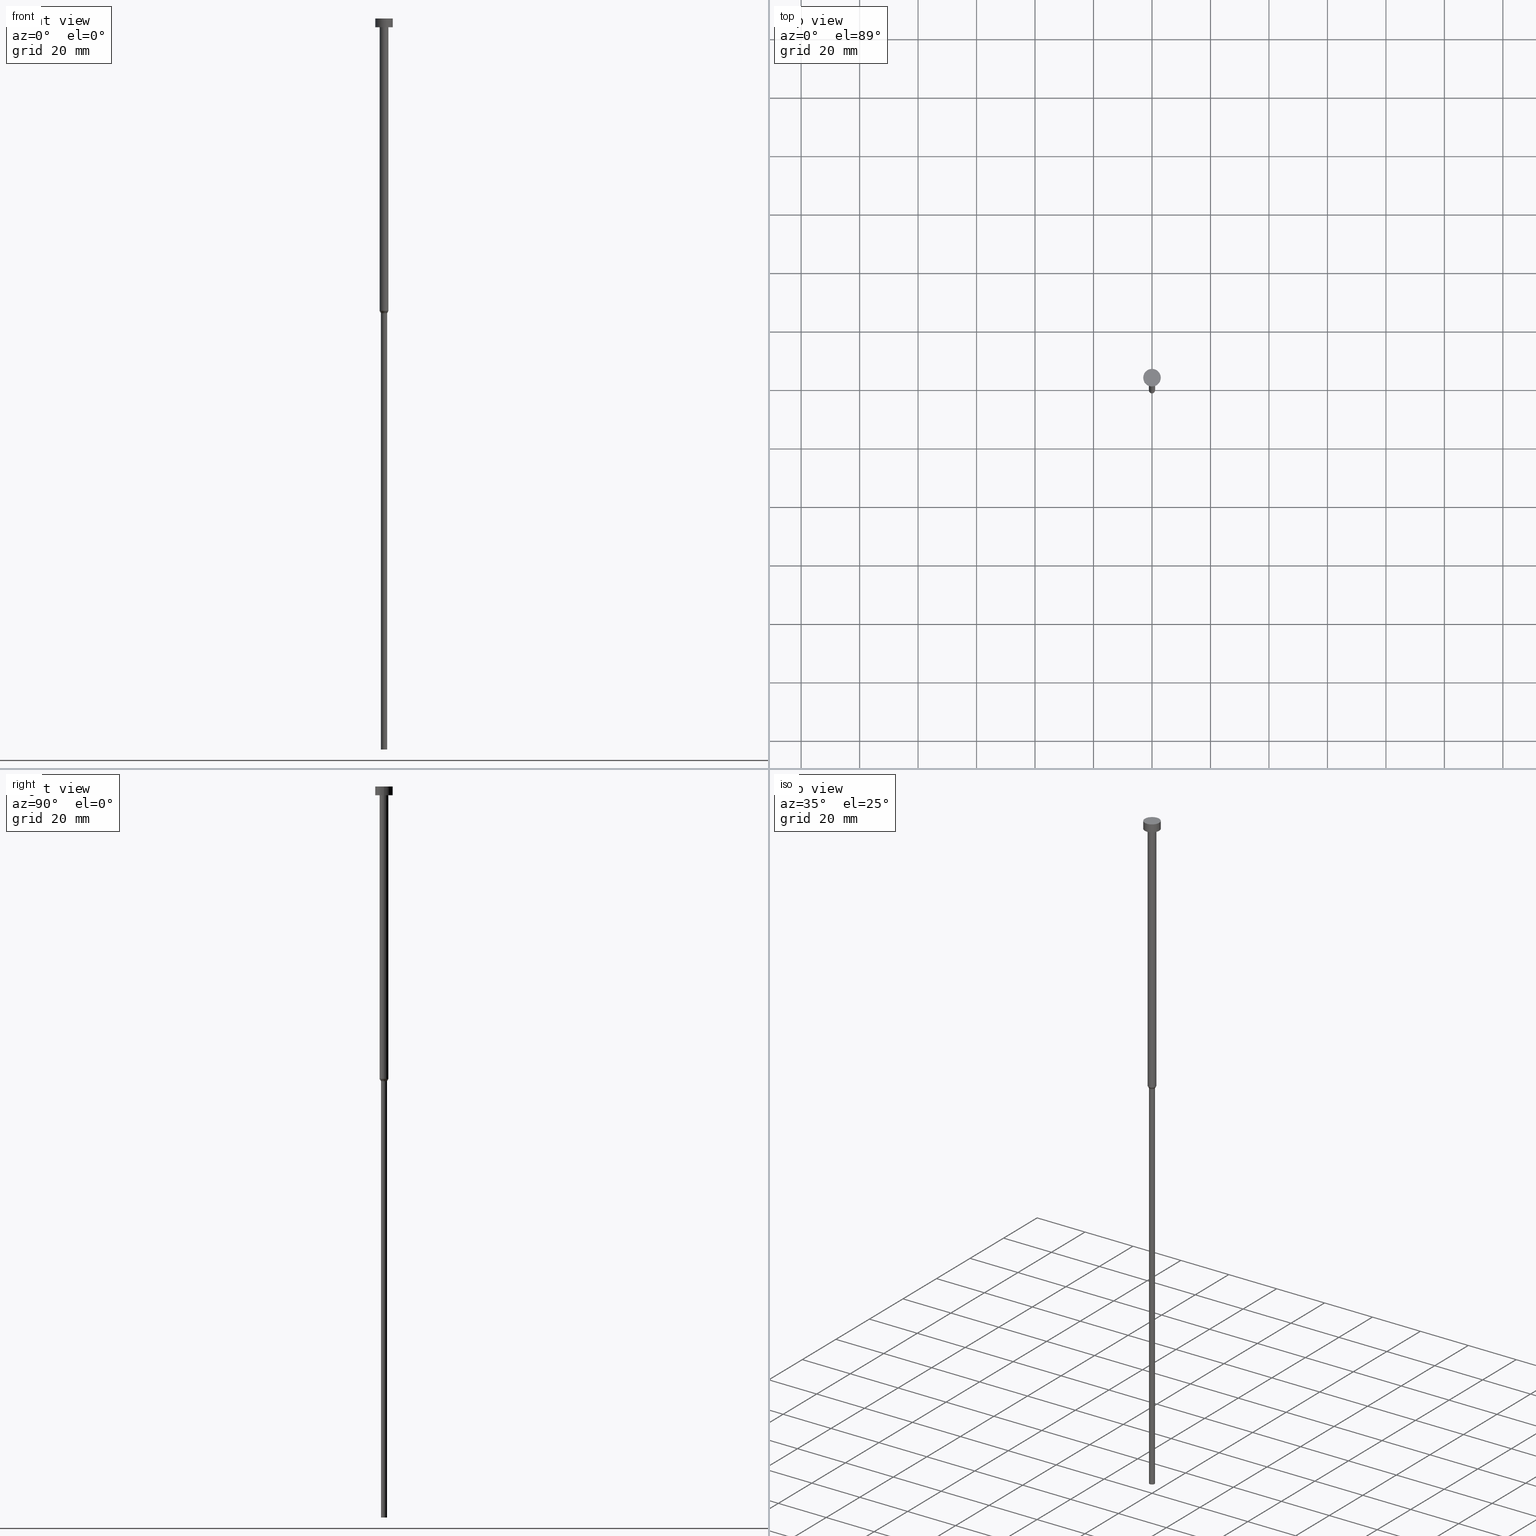
[diagram: canonical four-view strip — front | top / right | iso, engineering-drawing reading convention]
A machine part, canonical four-view strip (front | top / right | iso — engineering-drawing reading convention). The complete STEP part file that produces these views, byte-faithful:
ISO-10303-21;
HEADER;
FILE_DESCRIPTION (( 'STEP AP203' ),
    '1' );
FILE_NAME ('f9d6.STEP',
    '2023-02-13T09:01:00',
    ( '' ),
    ( '' ),
    'SwSTEP 2.0',
    'SolidWorks 2019',
    '' );
FILE_SCHEMA (( 'CONFIG_CONTROL_DESIGN' ));
ENDSEC;

DATA;
#1 = ORIENTED_EDGE ( 'NONE', *, *, #197, .F. ) ;
#2 = PRODUCT_DEFINITION_FORMATION_WITH_SPECIFIED_SOURCE ( 'LIBOVOLN�', '', #251, .NOT_KNOWN. ) ;
#3 = ORIENTED_EDGE ( 'NONE', *, *, #173, .T. ) ;
#4 = ORIENTED_EDGE ( 'NONE', *, *, #345, .T. ) ;
#5 = DESIGN_CONTEXT ( 'detailed design', #124, 'design' ) ;
#6 = EDGE_CURVE ( 'NONE', #352, #64, #143, .T. ) ;
#7 = CARTESIAN_POINT ( 'NONE',  ( 0.000000000000000000, 0.000000000000000000, -100.0000000000000000 ) ) ;
#8 = DIRECTION ( 'NONE',  ( -0.000000000000000000, -0.000000000000000000, 1.000000000000000000 ) ) ;
#9 = DIRECTION ( 'NONE',  ( 1.000000000000000000, 0.000000000000000000, 0.000000000000000000 ) ) ;
#10 = CC_DESIGN_PERSON_AND_ORGANIZATION_ASSIGNMENT ( #351, #139, ( #2 ) ) ;
#11 = CARTESIAN_POINT ( 'NONE',  ( -1.500000000000000000, 1.836970198721029934E-16, -100.0000000000000000 ) ) ;
#12 = DIRECTION ( 'NONE',  ( -0.000000000000000000, -0.000000000000000000, 1.000000000000000000 ) ) ;
#13 = PLANE ( 'NONE',  #20 ) ;
#14 = VERTEX_POINT ( 'NONE', #302 ) ;
#15 = CC_DESIGN_DATE_AND_TIME_ASSIGNMENT ( #350, #164, ( #29 ) ) ;
#16 = CARTESIAN_POINT ( 'NONE',  ( 3.000000000000000000, 0.000000000000000000, -3.000000000000000888 ) ) ;
#17 = VERTEX_POINT ( 'NONE', #215 ) ;
#18 = VECTOR ( 'NONE', #232, 1000.000000000000000 ) ;
#19 = DIRECTION ( 'NONE',  ( 1.000000000000000000, 0.000000000000000000, 0.000000000000000000 ) ) ;
#20 = AXIS2_PLACEMENT_3D ( 'NONE', #157, #45, #238 ) ;
#21 = CARTESIAN_POINT ( 'NONE',  ( 0.000000000000000000, 0.000000000000000000, -250.0000000000000000 ) ) ;
#22 = PERSON ( 'NEUR�EN�', 'NEUR�EN�', 'NEUR�EN�', ('NEUR�EN�'), ('NEUR�EN�'), ('NEUR�EN�') ) ;
#23 = CYLINDRICAL_SURFACE ( 'NONE', #255, 1.500000000000000000 ) ;
#24 = APPROVAL ( #329, 'NEUR�EN�' ) ;
#25 = PERSON_AND_ORGANIZATION ( #22, #155 ) ;
#26 = ORIENTED_EDGE ( 'NONE', *, *, #166, .F. ) ;
#27 = DATE_AND_TIME ( #142, #249 ) ;
#28 = ORIENTED_EDGE ( 'NONE', *, *, #71, .T. ) ;
#29 = PRODUCT_DEFINITION ( 'NEZN�M�', '', #2, #5 ) ;
#30 = COORDINATED_UNIVERSAL_TIME_OFFSET ( 1, 0, .AHEAD. ) ;
#31 = PERSON_AND_ORGANIZATION_ROLE ( 'design_owner' ) ;
#32 = EDGE_LOOP ( 'NONE', ( #4, #195, #333, #1 ) ) ;
#33 = UNCERTAINTY_MEASURE_WITH_UNIT (LENGTH_MEASURE( 1.000000000000000082E-05 ), #129, 'distance_accuracy_value', 'NONE');
#34 = CC_DESIGN_APPROVAL ( #285, ( #58 ) ) ;
#35 = DATE_AND_TIME ( #53, #347 ) ;
#36 = ORIENTED_EDGE ( 'NONE', *, *, #233, .T. ) ;
#37 = DIRECTION ( 'NONE',  ( 1.000000000000000000, 0.000000000000000000, 0.000000000000000000 ) ) ;
#38 = CARTESIAN_POINT ( 'NONE',  ( -1.050000000000000044, 1.285879139104720978E-16, -100.7794228634059976 ) ) ;
#39 = AXIS2_PLACEMENT_3D ( 'NONE', #338, #289, #342 ) ;
#40 = AXIS2_PLACEMENT_3D ( 'NONE', #349, #106, #188 ) ;
#41 = CARTESIAN_POINT ( 'NONE',  ( 0.000000000000000000, 0.000000000000000000, -100.7794228634059976 ) ) ;
#42 = DIRECTION ( 'NONE',  ( 1.000000000000000000, 0.000000000000000000, 0.000000000000000000 ) ) ;
#43 = CARTESIAN_POINT ( 'NONE',  ( -1.050000000000000044, 1.285879139104720978E-16, -250.0000000000000000 ) ) ;
#44 = CIRCLE ( 'NONE', #288, 1.050000000000000044 ) ;
#45 = DIRECTION ( 'NONE',  ( 0.000000000000000000, -0.000000000000000000, 1.000000000000000000 ) ) ;
#46 = CC_DESIGN_PERSON_AND_ORGANIZATION_ASSIGNMENT ( #86, #332, ( #29 ) ) ;
#47 = FACE_OUTER_BOUND ( 'NONE', #306, .T. ) ;
#48 = CARTESIAN_POINT ( 'NONE',  ( 0.000000000000000000, 0.000000000000000000, -100.0000000000000000 ) ) ;
#49 = CARTESIAN_POINT ( 'NONE',  ( 3.000000000000000000, 0.000000000000000000, -3.673940397442059868E-16 ) ) ;
#50 = AXIS2_PLACEMENT_3D ( 'NONE', #48, #235, #101 ) ;
#51 = CC_DESIGN_DATE_AND_TIME_ASSIGNMENT ( #35, #269, ( #58 ) ) ;
#52 = FACE_OUTER_BOUND ( 'NONE', #127, .T. ) ;
#53 = CALENDAR_DATE ( 2023, 13, 2 ) ;
#54 = ORIENTED_EDGE ( 'NONE', *, *, #130, .T. ) ;
#55 = APPROVAL_DATE_TIME ( #167, #243 ) ;
#56 = ADVANCED_FACE ( 'NONE', ( #242 ), #151, .T. ) ;
#57 = VERTEX_POINT ( 'NONE', #175 ) ;
#58 = SECURITY_CLASSIFICATION ( '', '', #63 ) ;
#59 =( NAMED_UNIT ( * ) SI_UNIT ( $, .STERADIAN. ) SOLID_ANGLE_UNIT ( ) );
#60 = ORIENTED_EDGE ( 'NONE', *, *, #233, .F. ) ;
#61 = COORDINATED_UNIVERSAL_TIME_OFFSET ( 1, 0, .AHEAD. ) ;
#62 = VERTEX_POINT ( 'NONE', #38 ) ;
#63 = SECURITY_CLASSIFICATION_LEVEL ( 'unclassified' ) ;
#64 = VERTEX_POINT ( 'NONE', #93 ) ;
#65 = DIRECTION ( 'NONE',  ( 1.000000000000000000, 0.000000000000000000, 0.000000000000000000 ) ) ;
#66 = CARTESIAN_POINT ( 'NONE',  ( 0.000000000000000000, 0.000000000000000000, -3.000000000000000888 ) ) ;
#67 = DIRECTION ( 'NONE',  ( -0.000000000000000000, -0.000000000000000000, 1.000000000000000000 ) ) ;
#68 = AXIS2_PLACEMENT_3D ( 'NONE', #182, #74, #211 ) ;
#69 = DIRECTION ( 'NONE',  ( 1.000000000000000000, 0.000000000000000000, 0.000000000000000000 ) ) ;
#70 = DIRECTION ( 'NONE',  ( 1.000000000000000000, 0.000000000000000000, 0.000000000000000000 ) ) ;
#71 = EDGE_CURVE ( 'NONE', #325, #278, #230, .T. ) ;
#72 = CYLINDRICAL_SURFACE ( 'NONE', #328, 1.050000000000000044 ) ;
#73 = APPROVAL_PERSON_ORGANIZATION ( #25, #285, #214 ) ;
#74 = DIRECTION ( 'NONE',  ( 0.000000000000000000, 0.000000000000000000, -1.000000000000000000 ) ) ;
#75 = DIRECTION ( 'NONE',  ( 1.000000000000000000, 0.000000000000000000, 0.000000000000000000 ) ) ;
#76 = CC_DESIGN_PERSON_AND_ORGANIZATION_ASSIGNMENT ( #241, #161, ( #2 ) ) ;
#77 = APPLICATION_CONTEXT ( 'configuration controlled 3d designs of mechanical parts and assemblies' ) ;
#78 = CIRCLE ( 'NONE', #224, 1.050000000000000044 ) ;
#80 = CIRCLE ( 'NONE', #122, 1.500000000000000000 ) ;
#79 = DIRECTION ( 'NONE',  ( 1.000000000000000000, 0.000000000000000000, 0.000000000000000000 ) ) ;
#81 = CC_DESIGN_APPROVAL ( #24, ( #29 ) ) ;
#82 = APPROVAL_STATUS ( 'not_yet_approved' ) ;
#83 = VERTEX_POINT ( 'NONE', #340 ) ;
#84 = EDGE_LOOP ( 'NONE', ( #165, #60 ) ) ;
#85 = CIRCLE ( 'NONE', #209, 3.000000000000000000 ) ;
#86 = PERSON_AND_ORGANIZATION ( #22, #155 ) ;
#87 = ORIENTED_EDGE ( 'NONE', *, *, #180, .F. ) ;
#88 =( NAMED_UNIT ( * ) PLANE_ANGLE_UNIT ( ) SI_UNIT ( $, .RADIAN. ) );
#89 = ORIENTED_EDGE ( 'NONE', *, *, #192, .F. ) ;
#90 = DIRECTION ( 'NONE',  ( -0.000000000000000000, -0.000000000000000000, 1.000000000000000000 ) ) ;
#91 = VECTOR ( 'NONE', #348, 1000.000000000000000 ) ;
#92 = LOCAL_TIME ( 10, 1, 0.000000000000000000, #275 ) ;
#93 = CARTESIAN_POINT ( 'NONE',  ( -1.500000000000000000, 1.836970198721029934E-16, -3.000000000000000888 ) ) ;
#94 = EDGE_CURVE ( 'NONE', #282, #274, #97, .T. ) ;
#95 = LINE ( 'NONE', #312, #138 ) ;
#96 = DIRECTION ( 'NONE',  ( -0.000000000000000000, -0.000000000000000000, 1.000000000000000000 ) ) ;
#97 = CIRCLE ( 'NONE', #291, 3.000000000000000000 ) ;
#98 = VECTOR ( 'NONE', #290, 1000.000000000000000 ) ;
#99 = AXIS2_PLACEMENT_3D ( 'NONE', #259, #100, #65 ) ;
#100 = DIRECTION ( 'NONE',  ( -0.000000000000000000, -0.000000000000000000, 1.000000000000000000 ) ) ;
#101 = DIRECTION ( 'NONE',  ( 1.000000000000000000, 0.000000000000000000, 0.000000000000000000 ) ) ;
#102 = CONICAL_SURFACE ( 'NONE', #279, 1.500000000000000000, 0.5235987755983028125 ) ;
#103 = CARTESIAN_POINT ( 'NONE',  ( -3.000000000000000000, 3.673940397442059868E-16, 0.000000000000000000 ) ) ;
#104 = DIRECTION ( 'NONE',  ( -0.000000000000000000, -0.000000000000000000, 1.000000000000000000 ) ) ;
#105 = ADVANCED_FACE ( 'NONE', ( #229 ), #310, .T. ) ;
#106 = DIRECTION ( 'NONE',  ( -0.000000000000000000, -0.000000000000000000, 1.000000000000000000 ) ) ;
#107 = COORDINATED_UNIVERSAL_TIME_OFFSET ( 1, 0, .AHEAD. ) ;
#108 = EDGE_CURVE ( 'NONE', #133, #62, #95, .T. ) ;
#109 = EDGE_LOOP ( 'NONE', ( #276, #116, #326, #111 ) ) ;
#110 = DATE_AND_TIME ( #244, #219 ) ;
#111 = ORIENTED_EDGE ( 'NONE', *, *, #130, .F. ) ;
#112 = PERSON_AND_ORGANIZATION ( #22, #155 ) ;
#113 = EDGE_LOOP ( 'NONE', ( #245, #137 ) ) ;
#114 = EDGE_CURVE ( 'NONE', #62, #17, #78, .T. ) ;
#115 = EDGE_LOOP ( 'NONE', ( #354, #36, #220, #318 ) ) ;
#116 = ORIENTED_EDGE ( 'NONE', *, *, #108, .T. ) ;
#117 = FACE_OUTER_BOUND ( 'NONE', #163, .T. ) ;
#118 = ADVANCED_FACE ( 'NONE', ( #256 ), #343, .T. ) ;
#119 = DIRECTION ( 'NONE',  ( -0.000000000000000000, -0.000000000000000000, 1.000000000000000000 ) ) ;
#120 = DIRECTION ( 'NONE',  ( -1.000000000000000000, 0.000000000000000000, -0.000000000000000000 ) ) ;
#121 = DIRECTION ( 'NONE',  ( -0.000000000000000000, -0.000000000000000000, 1.000000000000000000 ) ) ;
#122 = AXIS2_PLACEMENT_3D ( 'NONE', #7, #67, #337 ) ;
#123 = PLANE ( 'NONE',  #327 ) ;
#124 = APPLICATION_CONTEXT ( 'configuration controlled 3d designs of mechanical parts and assemblies' ) ;
#125 = FACE_OUTER_BOUND ( 'NONE', #263, .T. ) ;
#126 = CARTESIAN_POINT ( 'NONE',  ( 0.000000000000000000, 0.000000000000000000, -3.000000000000000888 ) ) ;
#127 = EDGE_LOOP ( 'NONE', ( #191, #271, #168, #87 ) ) ;
#128 = CARTESIAN_POINT ( 'NONE',  ( -3.000000000000000000, 3.673940397442059868E-16, -3.673940397442059868E-16 ) ) ;
#129 =( LENGTH_UNIT ( ) NAMED_UNIT ( * ) SI_UNIT ( .MILLI., .METRE. ) );
#130 = EDGE_CURVE ( 'NONE', #83, #17, #284, .T. ) ;
#131 = APPROVAL_STATUS ( 'not_yet_approved' ) ;
#132 = APPROVAL_PERSON_ORGANIZATION ( #112, #24, #248 ) ;
#133 = VERTEX_POINT ( 'NONE', #43 ) ;
#134 = APPROVAL_DATE_TIME ( #27, #24 ) ;
#135 = ORIENTED_EDGE ( 'NONE', *, *, #266, .F. ) ;
#136 = MECHANICAL_CONTEXT ( 'NONE', #77, 'mechanical' ) ;
#137 = ORIENTED_EDGE ( 'NONE', *, *, #180, .T. ) ;
#138 = VECTOR ( 'NONE', #174, 1000.000000000000000 ) ;
#139 = PERSON_AND_ORGANIZATION_ROLE ( 'design_supplier' ) ;
#140 = EDGE_LOOP ( 'NONE', ( #28, #236, #26, #135 ) ) ;
#141 = VECTOR ( 'NONE', #262, 1000.000000000000000 ) ;
#142 = CALENDAR_DATE ( 2023, 13, 2 ) ;
#143 = LINE ( 'NONE', #334, #247 ) ;
#144 = CARTESIAN_POINT ( 'NONE',  ( 1.050000000000000044, 0.000000000000000000, 0.000000000000000000 ) ) ;
#145 = ADVANCED_FACE ( 'NONE', ( #260, #199 ), #123, .T. ) ;
#146 = DIRECTION ( 'NONE',  ( 1.000000000000000000, 0.000000000000000000, 0.000000000000000000 ) ) ;
#147 = AXIS2_PLACEMENT_3D ( 'NONE', #171, #273, #216 ) ;
#148 = CARTESIAN_POINT ( 'NONE',  ( 1.500000000000000000, 0.000000000000000000, 0.000000000000000000 ) ) ;
#149 = CARTESIAN_POINT ( 'NONE',  ( 0.000000000000000000, 0.000000000000000000, -3.673940397442059868E-16 ) ) ;
#150 = EDGE_CURVE ( 'NONE', #57, #64, #254, .T. ) ;
#151 = CYLINDRICAL_SURFACE ( 'NONE', #297, 3.000000000000000000 ) ;
#152 = CARTESIAN_POINT ( 'NONE',  ( 0.000000000000000000, 0.000000000000000000, -100.0000000000000000 ) ) ;
#153 = DIRECTION ( 'NONE',  ( -0.000000000000000000, -0.000000000000000000, 1.000000000000000000 ) ) ;
#154 = DIRECTION ( 'NONE',  ( -0.000000000000000000, -0.000000000000000000, 1.000000000000000000 ) ) ;
#155 = ORGANIZATION ( 'NEUR�EN�', 'NEUR�EN�', '' ) ;
#156 = FACE_OUTER_BOUND ( 'NONE', #109, .T. ) ;
#157 = CARTESIAN_POINT ( 'NONE',  ( 0.000000000000000000, 0.000000000000000000, -1.836970198721029934E-16 ) ) ;
#158 = APPLICATION_PROTOCOL_DEFINITION ( 'international standard', 'config_control_design', 1994, #77 ) ;
#159 = EDGE_CURVE ( 'NONE', #17, #14, #226, .T. ) ;
#160 = ORIENTED_EDGE ( 'NONE', *, *, #108, .F. ) ;
#162 = AXIS2_PLACEMENT_3D ( 'NONE', #21, #104, #212 ) ;
#161 = PERSON_AND_ORGANIZATION_ROLE ( 'creator' ) ;
#163 = EDGE_LOOP ( 'NONE', ( #172, #252, #186, #89 ) ) ;
#164 = DATE_TIME_ROLE ( 'creation_date' ) ;
#165 = ORIENTED_EDGE ( 'NONE', *, *, #71, .F. ) ;
#166 = EDGE_CURVE ( 'NONE', #274, #282, #225, .T. ) ;
#167 = DATE_AND_TIME ( #308, #92 ) ;
#168 = ORIENTED_EDGE ( 'NONE', *, *, #197, .T. ) ;
#169 = MANIFOLD_SOLID_BREP ( 'Rotovat1', #202 ) ;
#170 = AXIS2_PLACEMENT_3D ( 'NONE', #227, #96, #203 ) ;
#171 = CARTESIAN_POINT ( 'NONE',  ( 0.000000000000000000, 0.000000000000000000, 0.000000000000000000 ) ) ;
#172 = ORIENTED_EDGE ( 'NONE', *, *, #173, .F. ) ;
#173 = EDGE_CURVE ( 'NONE', #62, #352, #313, .T. ) ;
#174 = DIRECTION ( 'NONE',  ( -0.000000000000000000, -0.000000000000000000, 1.000000000000000000 ) ) ;
#175 = CARTESIAN_POINT ( 'NONE',  ( 1.500000000000000000, 0.000000000000000000, -3.000000000000000888 ) ) ;
#176 = AXIS2_PLACEMENT_3D ( 'NONE', #201, #8, #42 ) ;
#177 = CARTESIAN_POINT ( 'NONE',  ( 1.500000000000000000, 0.000000000000000000, -100.0000000000000000 ) ) ;
#178 =( GEOMETRIC_REPRESENTATION_CONTEXT ( 3 ) GLOBAL_UNCERTAINTY_ASSIGNED_CONTEXT ( ( #33 ) ) GLOBAL_UNIT_ASSIGNED_CONTEXT ( ( #129, #88, #59 ) ) REPRESENTATION_CONTEXT ( 'NONE', 'WORKASPACE' ) );
#179 = DIRECTION ( 'NONE',  ( -0.000000000000000000, -0.000000000000000000, 1.000000000000000000 ) ) ;
#180 = EDGE_CURVE ( 'NONE', #64, #57, #198, .T. ) ;
#181 = CARTESIAN_POINT ( 'NONE',  ( 0.000000000000000000, 0.000000000000000000, -100.0000000000000000 ) ) ;
#182 = CARTESIAN_POINT ( 'NONE',  ( 0.000000000000000000, 0.000000000000000000, -250.0000000000000000 ) ) ;
#183 = CIRCLE ( 'NONE', #162, 1.050000000000000044 ) ;
#184 = FACE_OUTER_BOUND ( 'NONE', #140, .T. ) ;
#185 = CC_DESIGN_PERSON_AND_ORGANIZATION_ASSIGNMENT ( #218, #31, ( #251 ) ) ;
#186 = ORIENTED_EDGE ( 'NONE', *, *, #159, .T. ) ;
#187 = CARTESIAN_POINT ( 'NONE',  ( 0.000000000000000000, 0.000000000000000000, 0.000000000000000000 ) ) ;
#188 = DIRECTION ( 'NONE',  ( 1.000000000000000000, 0.000000000000000000, 0.000000000000000000 ) ) ;
#189 = ADVANCED_FACE ( 'NONE', ( #117 ), #102, .T. ) ;
#190 = PERSON_AND_ORGANIZATION ( #22, #155 ) ;
#191 = ORIENTED_EDGE ( 'NONE', *, *, #6, .F. ) ;
#192 = EDGE_CURVE ( 'NONE', #352, #14, #80, .T. ) ;
#193 = ORIENTED_EDGE ( 'NONE', *, *, #213, .F. ) ;
#194 = COORDINATED_UNIVERSAL_TIME_OFFSET ( 1, 0, .AHEAD. ) ;
#195 = ORIENTED_EDGE ( 'NONE', *, *, #6, .T. ) ;
#196 = ORIENTED_EDGE ( 'NONE', *, *, #159, .F. ) ;
#197 = EDGE_CURVE ( 'NONE', #14, #57, #287, .T. ) ;
#198 = CIRCLE ( 'NONE', #298, 1.500000000000000000 ) ;
#199 = FACE_OUTER_BOUND ( 'NONE', #84, .T. ) ;
#200 = DIRECTION ( 'NONE',  ( -0.000000000000000000, -0.000000000000000000, 1.000000000000000000 ) ) ;
#201 = CARTESIAN_POINT ( 'NONE',  ( 0.000000000000000000, 0.000000000000000000, -3.000000000000000888 ) ) ;
#202 = CLOSED_SHELL ( 'NONE', ( #223, #105, #270, #207, #261, #118, #189, #228, #145, #56, #311 ) ) ;
#203 = DIRECTION ( 'NONE',  ( 1.000000000000000000, 0.000000000000000000, 0.000000000000000000 ) ) ;
#204 = AXIS2_PLACEMENT_3D ( 'NONE', #152, #296, #267 ) ;
#205 = DIRECTION ( 'NONE',  ( -0.000000000000000000, -0.000000000000000000, 1.000000000000000000 ) ) ;
#206 = PLANE ( 'NONE',  #68 ) ;
#207 = ADVANCED_FACE ( 'NONE', ( #156 ), #72, .T. ) ;
#208 = AXIS2_PLACEMENT_3D ( 'NONE', #66, #121, #69 ) ;
#209 = AXIS2_PLACEMENT_3D ( 'NONE', #126, #294, #75 ) ;
#210 = DIRECTION ( 'NONE',  ( -0.000000000000000000, -0.000000000000000000, 1.000000000000000000 ) ) ;
#211 = DIRECTION ( 'NONE',  ( -1.000000000000000000, 0.000000000000000000, -0.000000000000000000 ) ) ;
#212 = DIRECTION ( 'NONE',  ( 1.000000000000000000, 0.000000000000000000, 0.000000000000000000 ) ) ;
#213 = EDGE_CURVE ( 'NONE', #133, #83, #183, .T. ) ;
#214 = APPROVAL_ROLE ( '' ) ;
#215 = CARTESIAN_POINT ( 'NONE',  ( 1.050000000000000044, 0.000000000000000000, -100.7794228634059976 ) ) ;
#216 = DIRECTION ( 'NONE',  ( 1.000000000000000000, 0.000000000000000000, 0.000000000000000000 ) ) ;
#217 = ORIENTED_EDGE ( 'NONE', *, *, #345, .F. ) ;
#218 = PERSON_AND_ORGANIZATION ( #22, #155 ) ;
#219 = LOCAL_TIME ( 10, 1, 0.000000000000000000, #30 ) ;
#220 = ORIENTED_EDGE ( 'NONE', *, *, #266, .T. ) ;
#221 = EDGE_LOOP ( 'NONE', ( #295, #3, #217, #196 ) ) ;
#222 = ORIENTED_EDGE ( 'NONE', *, *, #213, .T. ) ;
#223 = ADVANCED_FACE ( 'NONE', ( #184 ), #344, .T. ) ;
#224 = AXIS2_PLACEMENT_3D ( 'NONE', #41, #179, #146 ) ;
#225 = CIRCLE ( 'NONE', #99, 3.000000000000000000 ) ;
#226 = LINE ( 'NONE', #177, #18 ) ;
#227 = CARTESIAN_POINT ( 'NONE',  ( 0.000000000000000000, 0.000000000000000000, 0.000000000000000000 ) ) ;
#228 = ADVANCED_FACE ( 'NONE', ( #52 ), #23, .T. ) ;
#229 = FACE_OUTER_BOUND ( 'NONE', #32, .T. ) ;
#230 = CIRCLE ( 'NONE', #208, 3.000000000000000000 ) ;
#231 = DIRECTION ( 'NONE',  ( 1.000000000000000000, 0.000000000000000000, 0.000000000000000000 ) ) ;
#232 = DIRECTION ( 'NONE',  ( 0.5000000000000034417, 0.000000000000000000, 0.8660254037844367092 ) ) ;
#233 = EDGE_CURVE ( 'NONE', #278, #325, #85, .T. ) ;
#234 = CARTESIAN_POINT ( 'NONE',  ( 0.000000000000000000, 0.000000000000000000, -100.7794228634059976 ) ) ;
#235 = DIRECTION ( 'NONE',  ( -0.000000000000000000, -0.000000000000000000, 1.000000000000000000 ) ) ;
#236 = ORIENTED_EDGE ( 'NONE', *, *, #355, .T. ) ;
#237 = CIRCLE ( 'NONE', #50, 1.500000000000000000 ) ;
#238 = DIRECTION ( 'NONE',  ( 1.000000000000000000, 0.000000000000000000, 0.000000000000000000 ) ) ;
#239 = DIRECTION ( 'NONE',  ( -0.000000000000000000, -0.000000000000000000, 1.000000000000000000 ) ) ;
#240 = LOCAL_TIME ( 10, 1, 0.000000000000000000, #194 ) ;
#241 = PERSON_AND_ORGANIZATION ( #22, #155 ) ;
#242 = FACE_OUTER_BOUND ( 'NONE', #115, .T. ) ;
#243 = APPROVAL ( #82, 'NEUR�EN�' ) ;
#244 = CALENDAR_DATE ( 2023, 13, 2 ) ;
#245 = ORIENTED_EDGE ( 'NONE', *, *, #150, .T. ) ;
#246 = ORIENTED_EDGE ( 'NONE', *, *, #330, .F. ) ;
#247 = VECTOR ( 'NONE', #90, 1000.000000000000000 ) ;
#248 = APPROVAL_ROLE ( '' ) ;
#249 = LOCAL_TIME ( 10, 1, 0.000000000000000000, #61 ) ;
#250 = ORIENTED_EDGE ( 'NONE', *, *, #94, .T. ) ;
#251 = PRODUCT ( 'f9d6', 'f9d6', '', ( #136 ) ) ;
#252 = ORIENTED_EDGE ( 'NONE', *, *, #114, .T. ) ;
#253 = CARTESIAN_POINT ( 'NONE',  ( 0.000000000000000000, -3.000000000000000000, -3.000000000000000888 ) ) ;
#254 = CIRCLE ( 'NONE', #176, 1.500000000000000000 ) ;
#255 = AXIS2_PLACEMENT_3D ( 'NONE', #292, #322, #19 ) ;
#256 = FACE_OUTER_BOUND ( 'NONE', #331, .T. ) ;
#257 = CONICAL_SURFACE ( 'NONE', #204, 1.500000000000000000, 0.5235987755983028125 ) ;
#258 = CARTESIAN_POINT ( 'NONE',  ( 0.000000000000000000, 0.000000000000000000, -3.000000000000000888 ) ) ;
#259 = CARTESIAN_POINT ( 'NONE',  ( 0.000000000000000000, 0.000000000000000000, -3.673940397442059868E-16 ) ) ;
#260 = FACE_BOUND ( 'NONE', #113, .T. ) ;
#261 = ADVANCED_FACE ( 'NONE', ( #125 ), #206, .T. ) ;
#262 = DIRECTION ( 'NONE',  ( -0.000000000000000000, -0.000000000000000000, 1.000000000000000000 ) ) ;
#263 = EDGE_LOOP ( 'NONE', ( #246, #193 ) ) ;
#264 = CARTESIAN_POINT ( 'NONE',  ( -3.000000000000000000, 3.673940397442059868E-16, -3.000000000000000888 ) ) ;
#265 = CARTESIAN_POINT ( 'NONE',  ( 0.000000000000000000, 0.000000000000000000, 0.000000000000000000 ) ) ;
#266 = EDGE_CURVE ( 'NONE', #325, #274, #321, .T. ) ;
#267 = DIRECTION ( 'NONE',  ( 1.000000000000000000, 0.000000000000000000, 0.000000000000000000 ) ) ;
#268 = DIRECTION ( 'NONE',  ( 1.000000000000000000, 0.000000000000000000, 0.000000000000000000 ) ) ;
#269 = DATE_TIME_ROLE ( 'classification_date' ) ;
#270 = ADVANCED_FACE ( 'NONE', ( #317 ), #257, .T. ) ;
#271 = ORIENTED_EDGE ( 'NONE', *, *, #192, .T. ) ;
#272 = CC_DESIGN_SECURITY_CLASSIFICATION ( #58, ( #2 ) ) ;
#273 = DIRECTION ( 'NONE',  ( 0.000000000000000000, 0.000000000000000000, 1.000000000000000000 ) ) ;
#274 = VERTEX_POINT ( 'NONE', #49 ) ;
#275 = COORDINATED_UNIVERSAL_TIME_OFFSET ( 1, 0, .AHEAD. ) ;
#276 = ORIENTED_EDGE ( 'NONE', *, *, #330, .T. ) ;
#277 = PRODUCT_DEFINITION_SHAPE ( 'NONE', 'NONE',  #29 ) ;
#278 = VERTEX_POINT ( 'NONE', #264 ) ;
#279 = AXIS2_PLACEMENT_3D ( 'NONE', #181, #12, #9 ) ;
#281 = APPROVAL_PERSON_ORGANIZATION ( #353, #243, #301 ) ;
#280 = PERSON_AND_ORGANIZATION_ROLE ( 'classification_officer' ) ;
#282 = VERTEX_POINT ( 'NONE', #128 ) ;
#283 = CARTESIAN_POINT ( 'NONE',  ( 0.000000000000000000, 0.000000000000000000, 0.000000000000000000 ) ) ;
#284 = LINE ( 'NONE', #144, #286 ) ;
#285 = APPROVAL ( #131, 'NEUR�EN�' ) ;
#286 = VECTOR ( 'NONE', #119, 1000.000000000000000 ) ;
#287 = LINE ( 'NONE', #148, #91 ) ;
#288 = AXIS2_PLACEMENT_3D ( 'NONE', #234, #153, #316 ) ;
#289 = DIRECTION ( 'NONE',  ( -0.000000000000000000, -0.000000000000000000, 1.000000000000000000 ) ) ;
#290 = DIRECTION ( 'NONE',  ( -0.5000000000000034417, 6.123233995736807944E-17, 0.8660254037844367092 ) ) ;
#291 = AXIS2_PLACEMENT_3D ( 'NONE', #149, #200, #37 ) ;
#292 = CARTESIAN_POINT ( 'NONE',  ( 0.000000000000000000, 0.000000000000000000, 0.000000000000000000 ) ) ;
#293 = CC_DESIGN_APPROVAL ( #243, ( #2 ) ) ;
#294 = DIRECTION ( 'NONE',  ( -0.000000000000000000, -0.000000000000000000, 1.000000000000000000 ) ) ;
#295 = ORIENTED_EDGE ( 'NONE', *, *, #300, .T. ) ;
#296 = DIRECTION ( 'NONE',  ( -0.000000000000000000, -0.000000000000000000, 1.000000000000000000 ) ) ;
#297 = AXIS2_PLACEMENT_3D ( 'NONE', #283, #314, #231 ) ;
#298 = AXIS2_PLACEMENT_3D ( 'NONE', #258, #205, #70 ) ;
#299 = LINE ( 'NONE', #103, #336 ) ;
#300 = EDGE_CURVE ( 'NONE', #17, #62, #44, .T. ) ;
#301 = APPROVAL_ROLE ( '' ) ;
#302 = CARTESIAN_POINT ( 'NONE',  ( 1.500000000000000000, 0.000000000000000000, -100.0000000000000000 ) ) ;
#303 = CALENDAR_DATE ( 2023, 13, 2 ) ;
#304 = AXIS2_PLACEMENT_3D ( 'NONE', #187, #154, #79 ) ;
#305 = APPROVAL_DATE_TIME ( #110, #285 ) ;
#306 = EDGE_LOOP ( 'NONE', ( #307, #250 ) ) ;
#307 = ORIENTED_EDGE ( 'NONE', *, *, #166, .T. ) ;
#308 = CALENDAR_DATE ( 2023, 13, 2 ) ;
#309 = ORIENTED_EDGE ( 'NONE', *, *, #114, .F. ) ;
#310 = CYLINDRICAL_SURFACE ( 'NONE', #170, 1.500000000000000000 ) ;
#311 = ADVANCED_FACE ( 'NONE', ( #47 ), #13, .T. ) ;
#312 = CARTESIAN_POINT ( 'NONE',  ( -1.050000000000000044, 1.285879139104720978E-16, 0.000000000000000000 ) ) ;
#313 = LINE ( 'NONE', #11, #98 ) ;
#314 = DIRECTION ( 'NONE',  ( -0.000000000000000000, -0.000000000000000000, 1.000000000000000000 ) ) ;
#315 = DIRECTION ( 'NONE',  ( 0.000000000000000000, 0.000000000000000000, -1.000000000000000000 ) ) ;
#316 = DIRECTION ( 'NONE',  ( 1.000000000000000000, 0.000000000000000000, 0.000000000000000000 ) ) ;
#317 = FACE_OUTER_BOUND ( 'NONE', #221, .T. ) ;
#318 = ORIENTED_EDGE ( 'NONE', *, *, #94, .F. ) ;
#319 = CARTESIAN_POINT ( 'NONE',  ( 3.000000000000000000, 0.000000000000000000, 0.000000000000000000 ) ) ;
#320 = CC_DESIGN_PERSON_AND_ORGANIZATION_ASSIGNMENT ( #190, #280, ( #58 ) ) ;
#321 = LINE ( 'NONE', #319, #141 ) ;
#322 = DIRECTION ( 'NONE',  ( -0.000000000000000000, -0.000000000000000000, 1.000000000000000000 ) ) ;
#323 = APPLICATION_PROTOCOL_DEFINITION ( 'international standard', 'config_control_design', 1994, #124 ) ;
#324 = SHAPE_DEFINITION_REPRESENTATION ( #277, #339 ) ;
#325 = VERTEX_POINT ( 'NONE', #16 ) ;
#326 = ORIENTED_EDGE ( 'NONE', *, *, #300, .F. ) ;
#327 = AXIS2_PLACEMENT_3D ( 'NONE', #253, #315, #120 ) ;
#328 = AXIS2_PLACEMENT_3D ( 'NONE', #265, #239, #268 ) ;
#329 = APPROVAL_STATUS ( 'not_yet_approved' ) ;
#330 = EDGE_CURVE ( 'NONE', #83, #133, #341, .T. ) ;
#331 = EDGE_LOOP ( 'NONE', ( #160, #222, #54, #309 ) ) ;
#332 = PERSON_AND_ORGANIZATION_ROLE ( 'creator' ) ;
#333 = ORIENTED_EDGE ( 'NONE', *, *, #150, .F. ) ;
#334 = CARTESIAN_POINT ( 'NONE',  ( -1.500000000000000000, 1.836970198721029934E-16, 0.000000000000000000 ) ) ;
#335 = PRODUCT_RELATED_PRODUCT_CATEGORY ( 'detail', '', ( #251 ) ) ;
#336 = VECTOR ( 'NONE', #210, 1000.000000000000000 ) ;
#337 = DIRECTION ( 'NONE',  ( 1.000000000000000000, 0.000000000000000000, 0.000000000000000000 ) ) ;
#338 = CARTESIAN_POINT ( 'NONE',  ( 0.000000000000000000, 0.000000000000000000, 0.000000000000000000 ) ) ;
#339 = ADVANCED_BREP_SHAPE_REPRESENTATION ( 'f9d6', ( #169, #147 ), #178 ) ;
#340 = CARTESIAN_POINT ( 'NONE',  ( 1.050000000000000044, 0.000000000000000000, -250.0000000000000000 ) ) ;
#341 = CIRCLE ( 'NONE', #40, 1.050000000000000044 ) ;
#342 = DIRECTION ( 'NONE',  ( 1.000000000000000000, 0.000000000000000000, 0.000000000000000000 ) ) ;
#343 = CYLINDRICAL_SURFACE ( 'NONE', #39, 1.050000000000000044 ) ;
#344 = CYLINDRICAL_SURFACE ( 'NONE', #304, 3.000000000000000000 ) ;
#345 = EDGE_CURVE ( 'NONE', #14, #352, #237, .T. ) ;
#346 = CARTESIAN_POINT ( 'NONE',  ( -1.500000000000000000, 1.836970198721029934E-16, -100.0000000000000000 ) ) ;
#347 = LOCAL_TIME ( 10, 1, 0.000000000000000000, #107 ) ;
#348 = DIRECTION ( 'NONE',  ( -0.000000000000000000, -0.000000000000000000, 1.000000000000000000 ) ) ;
#349 = CARTESIAN_POINT ( 'NONE',  ( 0.000000000000000000, 0.000000000000000000, -250.0000000000000000 ) ) ;
#350 = DATE_AND_TIME ( #303, #240 ) ;
#351 = PERSON_AND_ORGANIZATION ( #22, #155 ) ;
#352 = VERTEX_POINT ( 'NONE', #346 ) ;
#353 = PERSON_AND_ORGANIZATION ( #22, #155 ) ;
#354 = ORIENTED_EDGE ( 'NONE', *, *, #355, .F. ) ;
#355 = EDGE_CURVE ( 'NONE', #278, #282, #299, .T. ) ;
ENDSEC;
END-ISO-10303-21;
